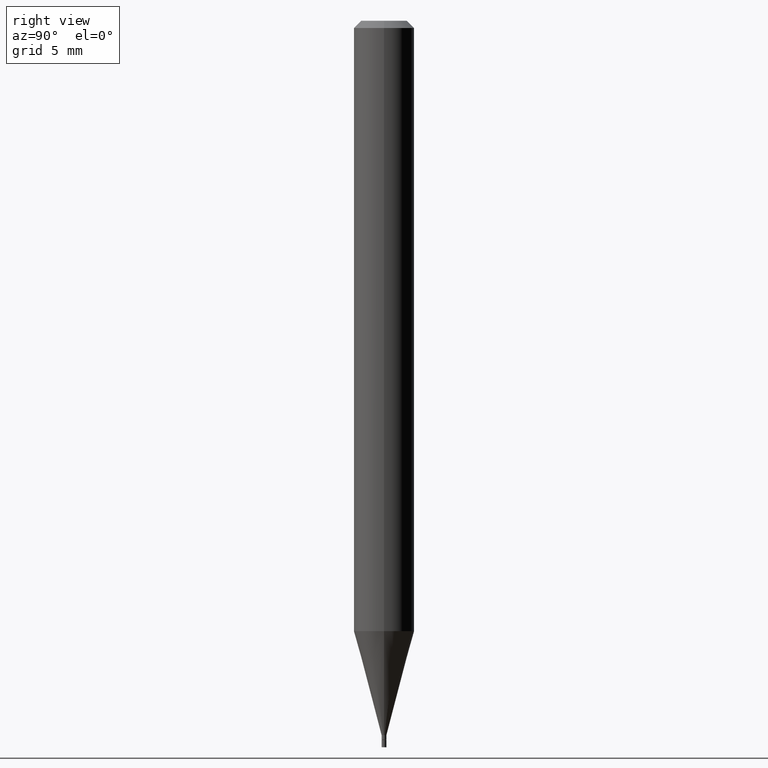
[diagram: clean part render]
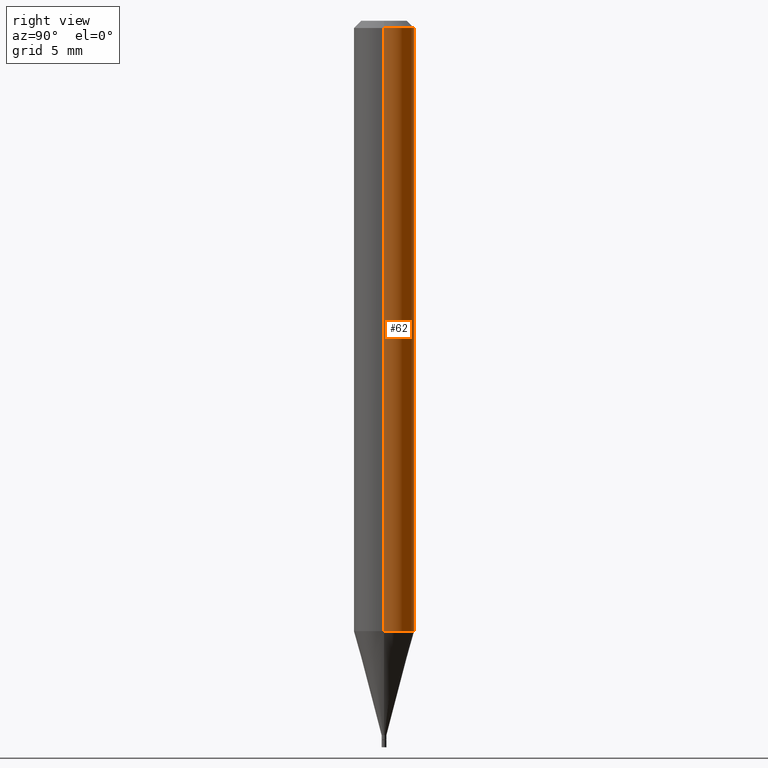
[diagram: same view with one face highlighted and labeled with its STEP entity id]
A machine part, right view. The second image highlights one B-rep face of the part: STEP entity #62.
In plain terms, the highlighted cylindrical surface (edge-blend (fillet) strip) has radius 1.5875 mm, axis along (-0, 0, 1).
Its self-contained STEP definition (entity closure, byte-faithful):
#1 = EDGE_CURVE ( 'NONE', #110, #408, #31, .T. ) ;
#17 = LINE ( 'NONE', #86, #463 ) ;
#30 = AXIS2_PLACEMENT_3D ( 'NONE', #328, #105, #436 ) ;
#31 = LINE ( 'NONE', #271, #333 ) ;
#50 = EDGE_CURVE ( 'NONE', #408, #197, #168, .T. ) ;
#62 = ADVANCED_FACE ( 'NONE', ( #291 ), #362, .T. ) ;
#86 = CARTESIAN_POINT ( 'NONE',  ( -0.06250000000000000000, 4.440892098500626162E-16, -3.074334431409316114E-30 ) ) ;
#88 = CARTESIAN_POINT ( 'NONE',  ( 0.06250000000000000000, -4.888073874380388472E-16, -0.01499999999999999944 ) ) ;
#90 = ORIENTED_EDGE ( 'NONE', *, *, #228, .T. ) ;
#105 = DIRECTION ( 'NONE',  ( -2.445468806185136597E-29, 3.491481338843145583E-15, 1.000000000000000000 ) ) ;
#110 = VERTEX_POINT ( 'NONE', #217 ) ;
#112 = CARTESIAN_POINT ( 'NONE',  ( -0.06250000000000000000, -1.782440797268646111E-15, -0.01499999999999999944 ) ) ;
#133 = DIRECTION ( 'NONE',  ( -2.445468806185136597E-29, 3.491481338843145583E-15, 1.000000000000000000 ) ) ;
#144 = DIRECTION ( 'NONE',  ( -2.445468806185136597E-29, 3.491481338843145583E-15, 1.000000000000000000 ) ) ;
#168 = CIRCLE ( 'NONE', #379, 0.06250000000000000000 ) ;
#178 = ORIENTED_EDGE ( 'NONE', *, *, #1, .F. ) ;
#197 = VERTEX_POINT ( 'NONE', #112 ) ;
#205 = AXIS2_PLACEMENT_3D ( 'NONE', #263, #144, #373 ) ;
#216 = ORIENTED_EDGE ( 'NONE', *, *, #247, .T. ) ;
#217 = CARTESIAN_POINT ( 'NONE',  ( 0.06249999999999999306, -4.837122961510163228E-15, -1.260407078564790062 ) ) ;
#228 = EDGE_CURVE ( 'NONE', #381, #197, #17, .T. ) ;
#239 = CIRCLE ( 'NONE', #205, 0.06250000000000000000 ) ;
#247 = EDGE_CURVE ( 'NONE', #110, #381, #239, .T. ) ;
#251 = DIRECTION ( 'NONE',  ( 1.000000000000000000, -6.982962677686266711E-15, 0.000000000000000000 ) ) ;
#263 = CARTESIAN_POINT ( 'NONE',  ( 3.082286193725132894E-29, -4.400687794154770769E-15, -1.260407078564790062 ) ) ;
#271 = CARTESIAN_POINT ( 'NONE',  ( 0.06250000000000000000, -4.364351673553916694E-16, 3.047610484872459871E-30 ) ) ;
#291 = FACE_OUTER_BOUND ( 'NONE', #375, .T. ) ;
#328 = CARTESIAN_POINT ( 'NONE',  ( 0.000000000000000000, 0.000000000000000000, 0.000000000000000000 ) ) ;
#330 = CARTESIAN_POINT ( 'NONE',  ( 3.668203209277705088E-31, -5.237222008264718399E-17, -0.01499999999999999944 ) ) ;
#333 = VECTOR ( 'NONE', #420, 39.37007874015748143 ) ;
#362 = CYLINDRICAL_SURFACE ( 'NONE', #30, 0.06250000000000000000 ) ;
#363 = ORIENTED_EDGE ( 'NONE', *, *, #50, .F. ) ;
#371 = DIRECTION ( 'NONE',  ( -2.445468806185136877E-29, 3.491481338843145188E-15, 1.000000000000000000 ) ) ;
#373 = DIRECTION ( 'NONE',  ( 1.000000000000000000, -6.982962677686262766E-15, 0.000000000000000000 ) ) ;
#375 = EDGE_LOOP ( 'NONE', ( #216, #90, #363, #178 ) ) ;
#379 = AXIS2_PLACEMENT_3D ( 'NONE', #330, #133, #251 ) ;
#381 = VERTEX_POINT ( 'NONE', #388 ) ;
#388 = CARTESIAN_POINT ( 'NONE',  ( -0.06249999999999999306, -3.956598584304708153E-15, -1.260407078564790062 ) ) ;
#408 = VERTEX_POINT ( 'NONE', #88 ) ;
#420 = DIRECTION ( 'NONE',  ( -2.445468806185136877E-29, 3.491481338843145188E-15, 1.000000000000000000 ) ) ;
#436 = DIRECTION ( 'NONE',  ( 1.000000000000000000, -6.982962677686266711E-15, 4.876176775795935793E-29 ) ) ;
#463 = VECTOR ( 'NONE', #371, 39.37007874015748143 ) ;